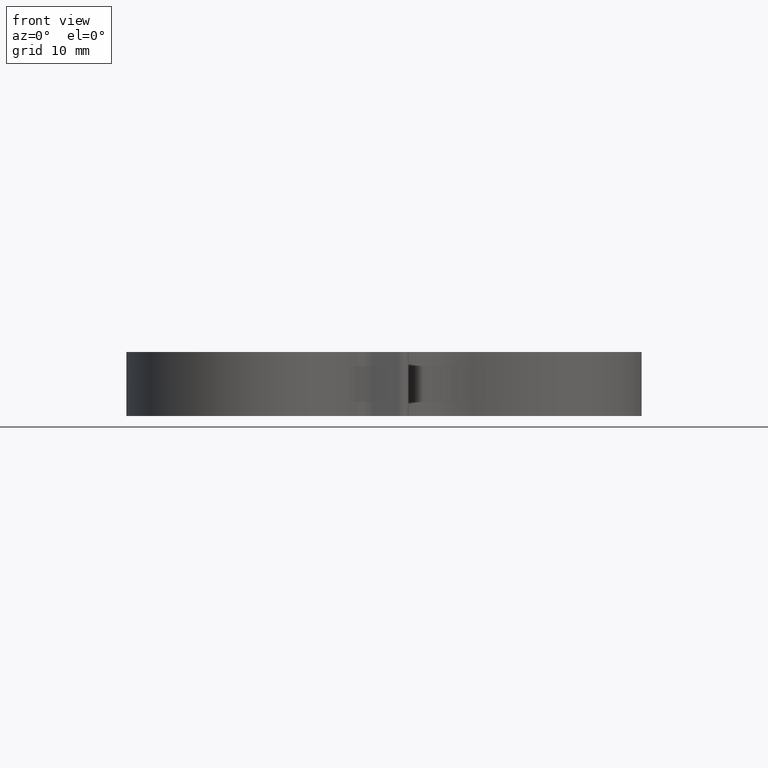
[diagram: clean part render]
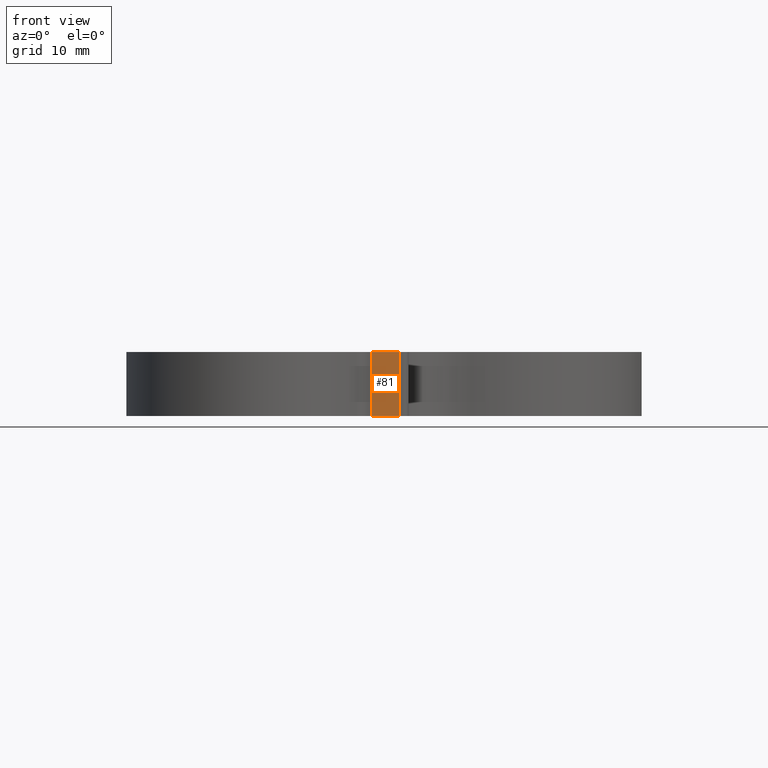
[diagram: same view with one face highlighted and labeled with its STEP entity id]
A machine part, front view. The second image highlights one B-rep face of the part: STEP entity #81.
In plain terms, the highlighted planar face has unit normal (0, 1, 0).
Its self-contained STEP definition (entity closure, byte-faithful):
#2 = EDGE_LOOP ( 'NONE', ( #413, #1207, #952, #1478 ) ) ;
#52 = CARTESIAN_POINT ( 'NONE',  ( 2.604254786024343000, -12.33030543774678000, 52.50000000000000700 ) ) ;
#81 = ADVANCED_FACE ( 'NONE', ( #290 ), #852, .F. ) ;
#114 = CARTESIAN_POINT ( 'NONE',  ( 2.604254786024343000, -12.33030543774678000, 59.50000000000000700 ) ) ;
#290 = FACE_OUTER_BOUND ( 'NONE', #2, .T. ) ;
#292 = CARTESIAN_POINT ( 'NONE',  ( 2.604254786024343000, -12.33030543774678000, 59.50000000000000700 ) ) ;
#297 = EDGE_CURVE ( 'NONE', #1348, #1060, #1366, .T. ) ;
#299 = VERTEX_POINT ( 'NONE', #899 ) ;
#329 = LINE ( 'NONE', #385, #1095 ) ;
#368 = VECTOR ( 'NONE', #878, 1000.000000000000000 ) ;
#385 = CARTESIAN_POINT ( 'NONE',  ( 5.671730606902049700, -12.33030543774678000, 59.50000000000000700 ) ) ;
#397 = CARTESIAN_POINT ( 'NONE',  ( 5.671730606902049700, -12.33030543774678000, 59.50000000000000700 ) ) ;
#413 = ORIENTED_EDGE ( 'NONE', *, *, #1122, .T. ) ;
#492 = LINE ( 'NONE', #52, #368 ) ;
#494 = DIRECTION ( 'NONE',  ( 0.0000000000000000000, 1.000000000000000000, 0.0000000000000000000 ) ) ;
#569 = EDGE_CURVE ( 'NONE', #1348, #299, #642, .T. ) ;
#642 = LINE ( 'NONE', #1349, #1517 ) ;
#730 = DIRECTION ( 'NONE',  ( 0.0000000000000000000, -0.0000000000000000000, 1.000000000000000000 ) ) ;
#787 = AXIS2_PLACEMENT_3D ( 'NONE', #1093, #494, #730 ) ;
#852 = PLANE ( 'NONE',  #787 ) ;
#878 = DIRECTION ( 'NONE',  ( 1.000000000000000000, 0.0000000000000000000, 0.0000000000000000000 ) ) ;
#899 = CARTESIAN_POINT ( 'NONE',  ( 2.604254786024343000, -12.33030543774678000, 52.50000000000000700 ) ) ;
#952 = ORIENTED_EDGE ( 'NONE', *, *, #297, .F. ) ;
#1001 = DIRECTION ( 'NONE',  ( -0.0000000000000000000, -0.0000000000000000000, -1.000000000000000000 ) ) ;
#1011 = DIRECTION ( 'NONE',  ( -0.0000000000000000000, -0.0000000000000000000, -1.000000000000000000 ) ) ;
#1019 = CARTESIAN_POINT ( 'NONE',  ( 5.671730606902049700, -12.33030543774678000, 52.50000000000000700 ) ) ;
#1060 = VERTEX_POINT ( 'NONE', #397 ) ;
#1063 = EDGE_CURVE ( 'NONE', #1060, #1202, #329, .T. ) ;
#1093 = CARTESIAN_POINT ( 'NONE',  ( 2.604254786024343000, -12.33030543774678000, 59.50000000000000700 ) ) ;
#1095 = VECTOR ( 'NONE', #1001, 1000.000000000000000 ) ;
#1122 = EDGE_CURVE ( 'NONE', #299, #1202, #492, .T. ) ;
#1202 = VERTEX_POINT ( 'NONE', #1019 ) ;
#1207 = ORIENTED_EDGE ( 'NONE', *, *, #1063, .F. ) ;
#1233 = VECTOR ( 'NONE', #1235, 1000.000000000000000 ) ;
#1235 = DIRECTION ( 'NONE',  ( 1.000000000000000000, 0.0000000000000000000, 0.0000000000000000000 ) ) ;
#1348 = VERTEX_POINT ( 'NONE', #114 ) ;
#1349 = CARTESIAN_POINT ( 'NONE',  ( 2.604254786024343000, -12.33030543774678000, 59.50000000000000700 ) ) ;
#1366 = LINE ( 'NONE', #292, #1233 ) ;
#1478 = ORIENTED_EDGE ( 'NONE', *, *, #569, .T. ) ;
#1517 = VECTOR ( 'NONE', #1011, 1000.000000000000000 ) ;